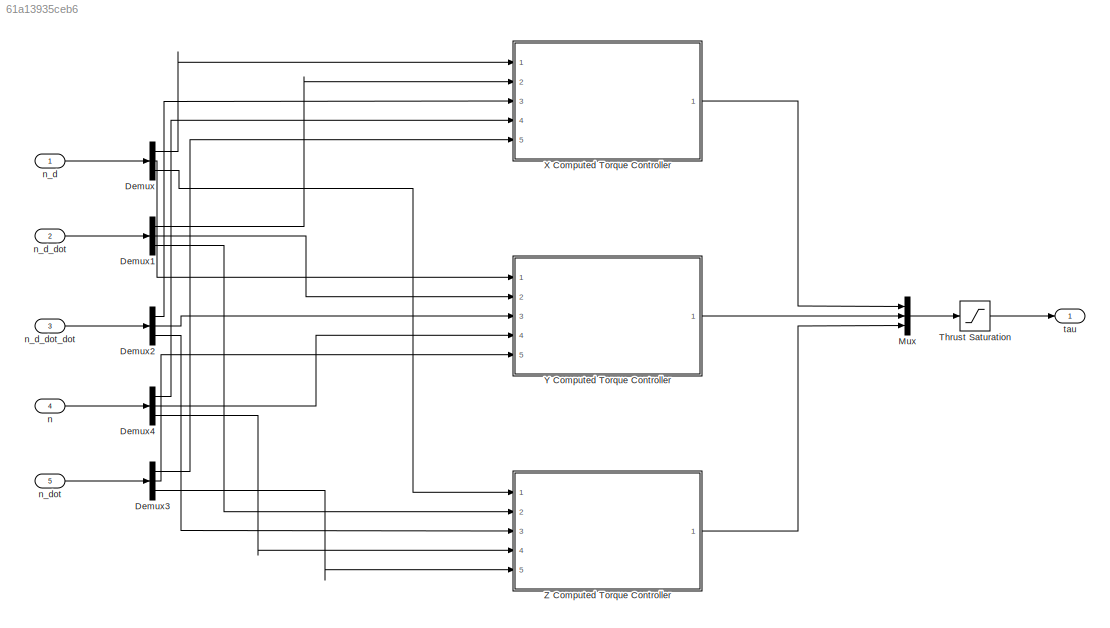
MODEL slx_61a13935ceb6
KIND model
CONFIG AbsTol = auto
CONFIG EnableMultiTasking = off
CONFIG FixedStep = auto
CONFIG MaxStep = auto
CONFIG MinStep = auto
CONFIG RelTol = 1e-3
CONFIG SampleTimeConstraint = Unconstrained
CONFIG Solver = VariableStepAuto
CONFIG SolverName = VariableStepAuto
CONFIG StartTime = 0.0
CONFIG StopTime = 10.0
BLOCK [Demux] Demux
  DisplayOption = bar
  Outputs = 3
  Ports = [1, 3]
BLOCK [Demux] Demux1
  DisplayOption = bar
  Outputs = 3
  Ports = [1, 3]
BLOCK [Demux] Demux2
  DisplayOption = bar
  Outputs = 3
  Ports = [1, 3]
BLOCK [Demux] Demux3
  DisplayOption = bar
  Outputs = 3
  Ports = [1, 3]
BLOCK [Demux] Demux4
  DisplayOption = bar
  Outputs = 3
  Ports = [1, 3]
BLOCK [Mux] Mux
  DisplayOption = bar
  Inputs = 3
  Ports = [3, 1]
BLOCK [Saturate] Thrust Saturation
  InputPortMap = u0
  LowerLimit = -100
  Ports = [1, 1]
  UpperLimit = 100
BLOCK [ModelReference] X Computed Torque Controller
  ModelNameDialog = computed_torque_controller.slx
  ModelReferenceVersion = 1.13
  Ports = [5, 1]
BLOCK [ModelReference] Y Computed Torque Controller
  ModelNameDialog = computed_torque_controller.slx
  ModelReferenceVersion = 1.13
  Ports = [5, 1]
BLOCK [ModelReference] Z Computed Torque Controller
  ModelNameDialog = computed_torque_controller.slx
  ModelReferenceVersion = 1.13
  Ports = [5, 1]
BLOCK [Inport] n
  IconDisplay = Port number
  Port = 4
BLOCK [Inport] n_d 
  IconDisplay = Port number
BLOCK [Inport] n_d_dot
  IconDisplay = Port number
  Port = 2
BLOCK [Inport] n_d_dot_dot
  IconDisplay = Port number
  Port = 3
BLOCK [Inport] n_dot
  IconDisplay = Port number
  Port = 5
BLOCK [Outport] tau
  IconDisplay = Port number
LINE Demux1:1 -> X Computed Torque Controller:2
LINE Demux1:2 -> Y Computed Torque Controller:2
LINE Demux1:3 -> Z Computed Torque Controller:2
LINE Demux2:1 -> X Computed Torque Controller:3
LINE Demux2:2 -> Y Computed Torque Controller:3
LINE Demux2:3 -> Z Computed Torque Controller:3
LINE Demux3:1 -> X Computed Torque Controller:5
LINE Demux3:2 -> Y Computed Torque Controller:5
LINE Demux3:3 -> Z Computed Torque Controller:5
LINE Demux4:1 -> X Computed Torque Controller:4
LINE Demux4:2 -> Y Computed Torque Controller:4
LINE Demux4:3 -> Z Computed Torque Controller:4
LINE Demux:1 -> X Computed Torque Controller:1
LINE Demux:2 -> Y Computed Torque Controller:1
LINE Demux:3 -> Z Computed Torque Controller:1
LINE Mux:1 -> Thrust Saturation:1
LINE Thrust Saturation:1 -> tau:1
LINE X Computed Torque Controller:1 -> Mux:1
LINE Y Computed Torque Controller:1 -> Mux:2
LINE Z Computed Torque Controller:1 -> Mux:3
LINE n:1 -> Demux4:1
LINE n_d :1 -> Demux:1
LINE n_d_dot:1 -> Demux1:1
LINE n_d_dot_dot:1 -> Demux2:1
LINE n_dot:1 -> Demux3:1
